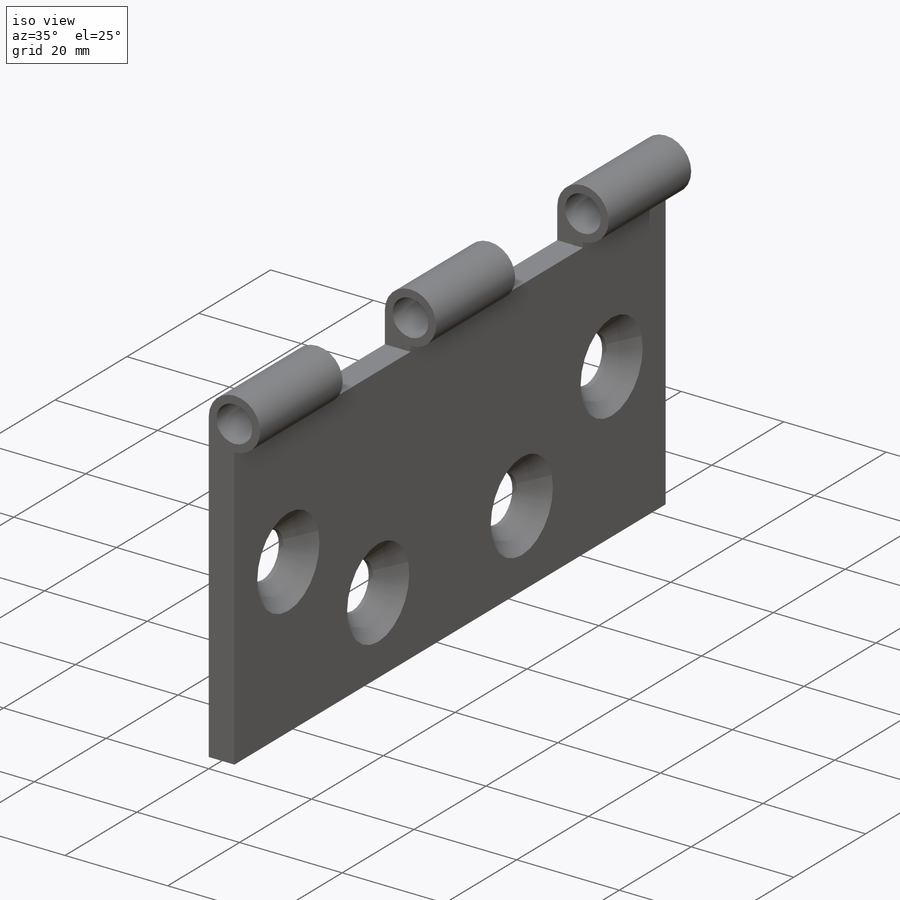
[diagram: iso view]
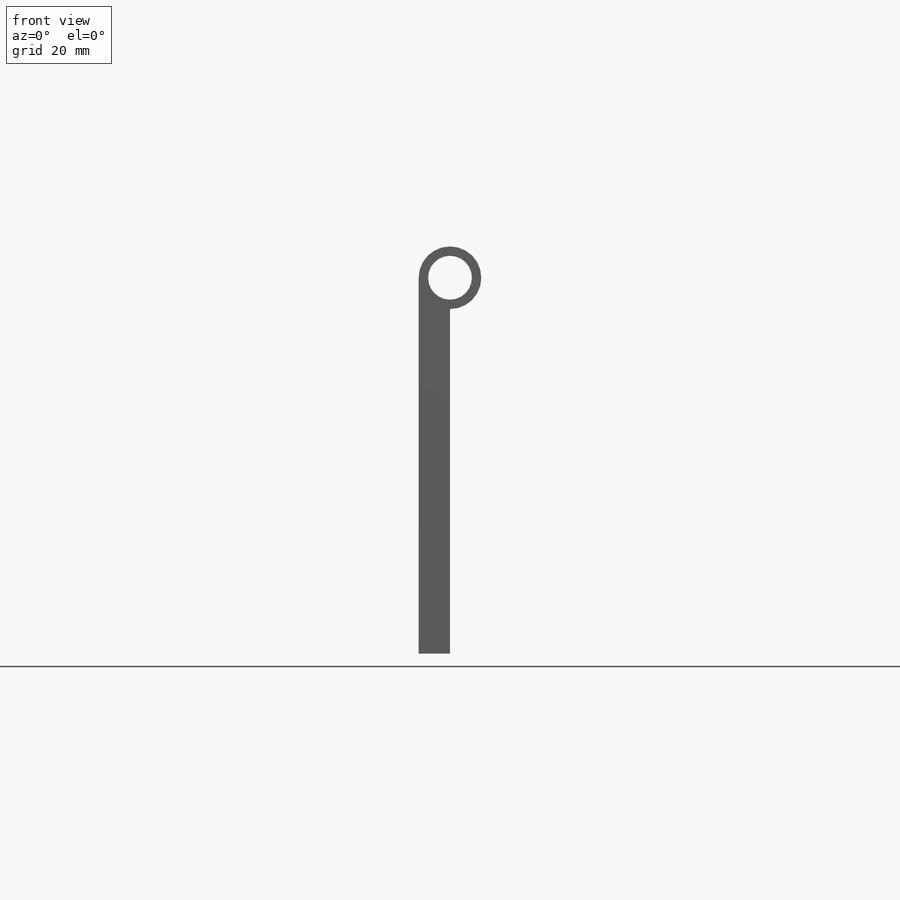
[diagram: front view]
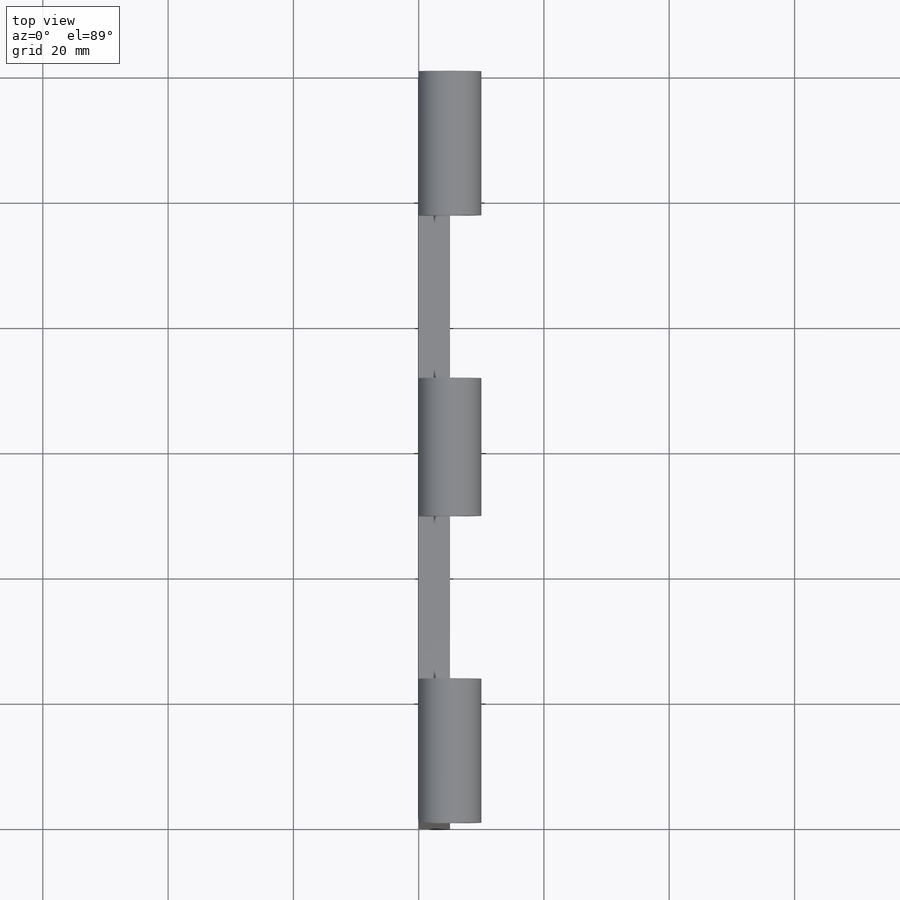
[diagram: top view]
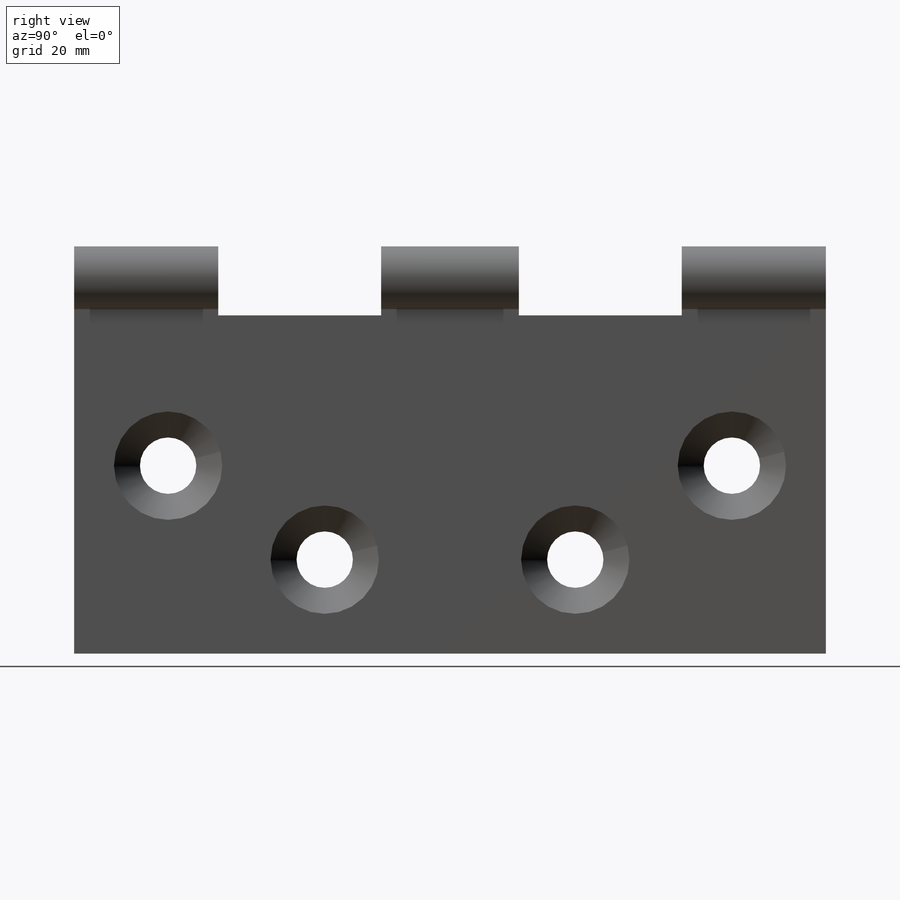
[diagram: right view]
SOLIDWORKS PART (.sldprt)
format: sldprt  version: not decoded by parser v0  size: 794,624 bytes
history: native  units: mm
features: sketch x8, cut_extrude x3, material x1, sweep x1, hole x1, mirror x1 (+12 scaffold rows collapsed)
feature tree (27):
  scaffold x12  (default folders/planes/origin — collapsed)
  material  "Material <not specified>"
  sketch  "Sketch15"  dims[c1.D1=60.0mm c2.D1=120.0mm c2.D5=5.0mm c2.D6=1.0mm c2.D7=5.0mm]
  sketch  "Sketch16"  dims[D1=10.0mm]
  sweep  "Sweep2"
  sketch  "Sketch17"  dims[D3=7.0mm D1=5.0mm D2=5.0mm]
  cut_extrude  "Cut-Extrude4"  [1 undecoded]
  hole  "CSK for M8 Flat Head Machine Screw4"  Diameter=9mm Depth=5mm
  sketch  "Sketch19"  dims[D1=30.0mm D2=15.0mm D3=15.0mm D4=40.0mm]
  sketch  "Sketch18"  dims[hole-wizard template sketch: 54 standard entries collapsed; hole parameters kept: c17.Thru Hole Dia.=9.0mm c17.Thru Hole Depth=5.0mm c17.Near C'Sink Dia.=17.3mm c17.D4=~3.666174mm c17.Near C'Sink Angle=90.0deg]
  mirror  "Mirror7"
  sketch  "layout for cuts"  dims[D3=24.0mm D4=24.0mm D5=24.0mm D6=24.0mm D1=0.0mm D2=1.0mm]
  sketch  "Sketch37"  dims[D1=1.0mm D2=1.0mm D3=1.0mm D4=1.0mm]
  cut_extrude  "2Cuts"  [1 undecoded]
  sketch  "Sketch35"  dims[D1=0.0mm D2=1.0mm D3=1.0mm D4=1.0mm D5=1.0mm]
  cut_extrude  "3Cuts"  [1 undecoded]
decode coverage: 9 of 14 modeling features carry decoded parameters
note: ~ marks probable driven/reference dimensions
note: 3 parameter values undecoded
summary: no parameter record found for 3 features
note: suppression state not decoded; provenance and decode notes live in map.json
